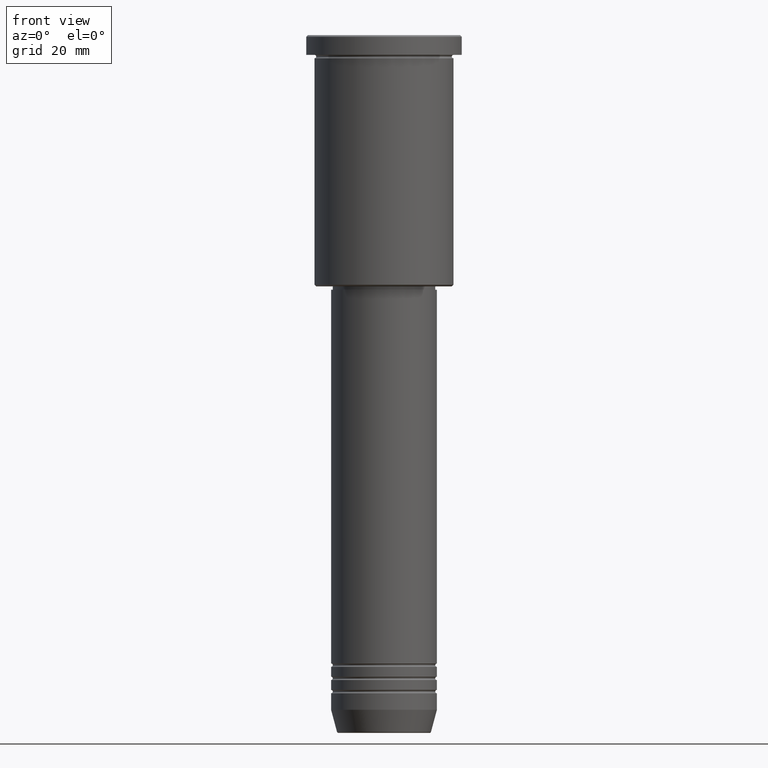
[diagram: clean part render]
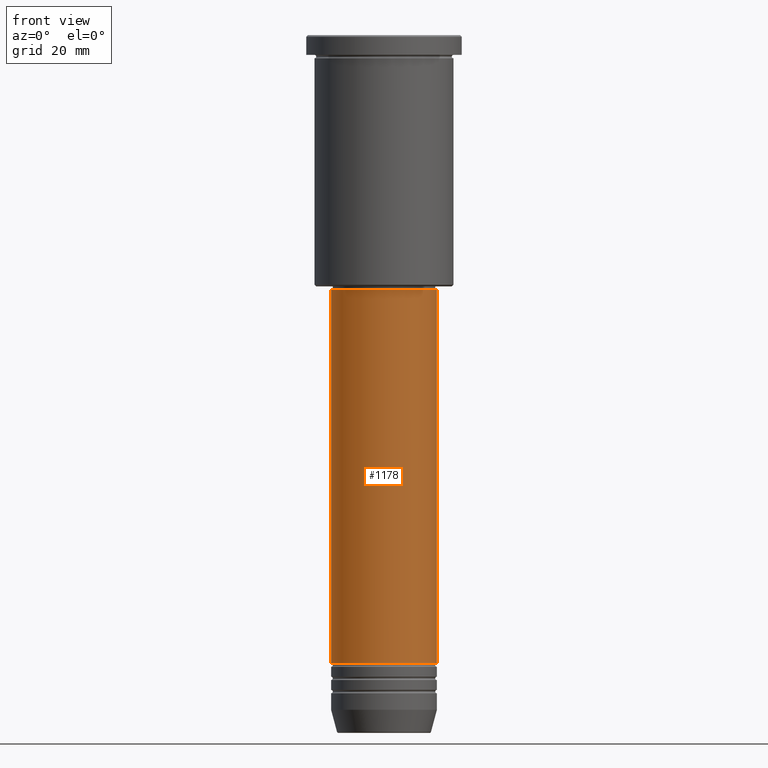
[diagram: same view with one face highlighted and labeled with its STEP entity id]
A machine part, front view. The second image highlights one B-rep face of the part: STEP entity #1178.
In plain terms, the highlighted cylindrical surface (partial cylindrical patch) has radius 16 mm, axis along (-0, -0, 1).
Its self-contained STEP definition (entity closure, byte-faithful):
#25 = CIRCLE ( 'NONE', #164, 16.00000000000000355 ) ;
#31 = AXIS2_PLACEMENT_3D ( 'NONE', #228, #338, #701 ) ;
#73 = DIRECTION ( 'NONE',  ( -0.000000000000000000, -0.000000000000000000, 1.000000000000000000 ) ) ;
#97 = CARTESIAN_POINT ( 'NONE',  ( 0.000000000000000000, 0.000000000000000000, -189.9999999999999147 ) ) ;
#136 = CARTESIAN_POINT ( 'NONE',  ( -16.00000000000000355, 1.959434878635765526E-15, -77.00000000000004263 ) ) ;
#138 = CYLINDRICAL_SURFACE ( 'NONE', #31, 16.00000000000000000 ) ;
#164 = AXIS2_PLACEMENT_3D ( 'NONE', #1095, #73, #885 ) ;
#224 = ORIENTED_EDGE ( 'NONE', *, *, #625, .F. ) ;
#228 = CARTESIAN_POINT ( 'NONE',  ( 0.000000000000000000, 0.000000000000000000, 0.000000000000000000 ) ) ;
#259 = DIRECTION ( 'NONE',  ( -0.000000000000000000, -0.000000000000000000, 1.000000000000000000 ) ) ;
#280 = DIRECTION ( 'NONE',  ( 1.000000000000000000, 0.000000000000000000, 0.000000000000000000 ) ) ;
#338 = DIRECTION ( 'NONE',  ( -0.000000000000000000, -0.000000000000000000, 1.000000000000000000 ) ) ;
#344 = CARTESIAN_POINT ( 'NONE',  ( -16.00000000000000000, 1.959434878635765131E-15, 0.000000000000000000 ) ) ;
#362 = DIRECTION ( 'NONE',  ( -0.000000000000000000, -0.000000000000000000, 1.000000000000000000 ) ) ;
#388 = DIRECTION ( 'NONE',  ( -0.000000000000000000, -0.000000000000000000, 1.000000000000000000 ) ) ;
#430 = VERTEX_POINT ( 'NONE', #924 ) ;
#462 = AXIS2_PLACEMENT_3D ( 'NONE', #97, #388, #280 ) ;
#467 = VERTEX_POINT ( 'NONE', #136 ) ;
#479 = VERTEX_POINT ( 'NONE', #972 ) ;
#603 = VECTOR ( 'NONE', #362, 1000.000000000000000 ) ;
#625 = EDGE_CURVE ( 'NONE', #467, #430, #25, .T. ) ;
#632 = EDGE_LOOP ( 'NONE', ( #1005, #1099, #1022, #224 ) ) ;
#636 = VERTEX_POINT ( 'NONE', #922 ) ;
#701 = DIRECTION ( 'NONE',  ( 1.000000000000000000, 0.000000000000000000, 0.000000000000000000 ) ) ;
#720 = CARTESIAN_POINT ( 'NONE',  ( 16.00000000000000000, 0.000000000000000000, 0.000000000000000000 ) ) ;
#863 = EDGE_CURVE ( 'NONE', #636, #467, #921, .T. ) ;
#866 = FACE_OUTER_BOUND ( 'NONE', #632, .T. ) ;
#885 = DIRECTION ( 'NONE',  ( 1.000000000000000000, 0.000000000000000000, 0.000000000000000000 ) ) ;
#921 = LINE ( 'NONE', #344, #603 ) ;
#922 = CARTESIAN_POINT ( 'NONE',  ( -16.00000000000000000, 1.959434878635765131E-15, -189.9999999999999147 ) ) ;
#923 = EDGE_CURVE ( 'NONE', #479, #430, #1165, .T. ) ;
#924 = CARTESIAN_POINT ( 'NONE',  ( 16.00000000000000355, 0.000000000000000000, -77.00000000000004263 ) ) ;
#972 = CARTESIAN_POINT ( 'NONE',  ( 16.00000000000000000, 0.000000000000000000, -189.9999999999999147 ) ) ;
#989 = VECTOR ( 'NONE', #259, 1000.000000000000000 ) ;
#1005 = ORIENTED_EDGE ( 'NONE', *, *, #863, .F. ) ;
#1022 = ORIENTED_EDGE ( 'NONE', *, *, #923, .T. ) ;
#1031 = EDGE_CURVE ( 'NONE', #636, #479, #1075, .T. ) ;
#1075 = CIRCLE ( 'NONE', #462, 16.00000000000000000 ) ;
#1095 = CARTESIAN_POINT ( 'NONE',  ( 0.000000000000000000, 0.000000000000000000, -77.00000000000004263 ) ) ;
#1099 = ORIENTED_EDGE ( 'NONE', *, *, #1031, .T. ) ;
#1165 = LINE ( 'NONE', #720, #989 ) ;
#1178 = ADVANCED_FACE ( 'NONE', ( #866 ), #138, .T. ) ;